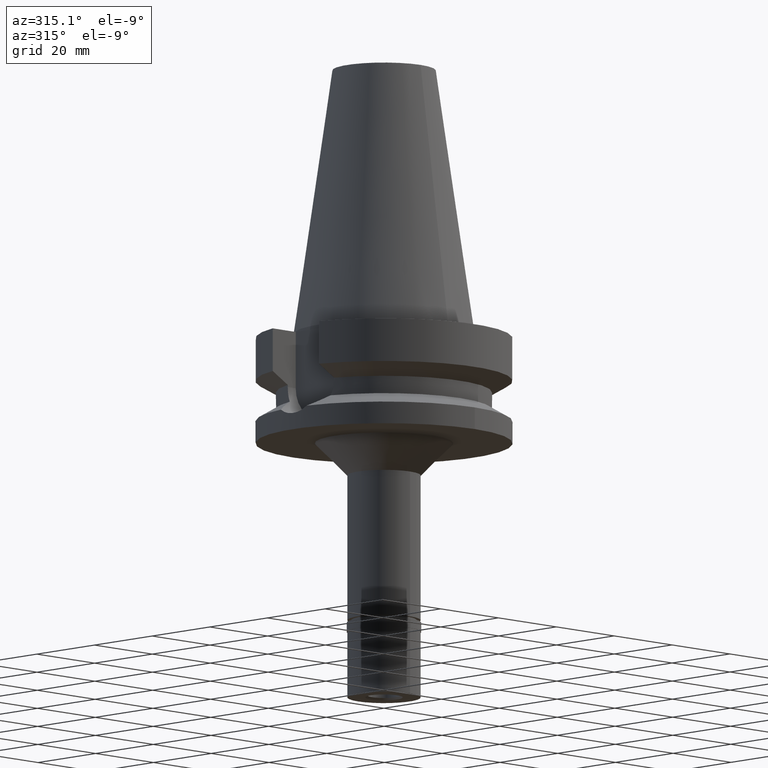
[diagram: clean part render]
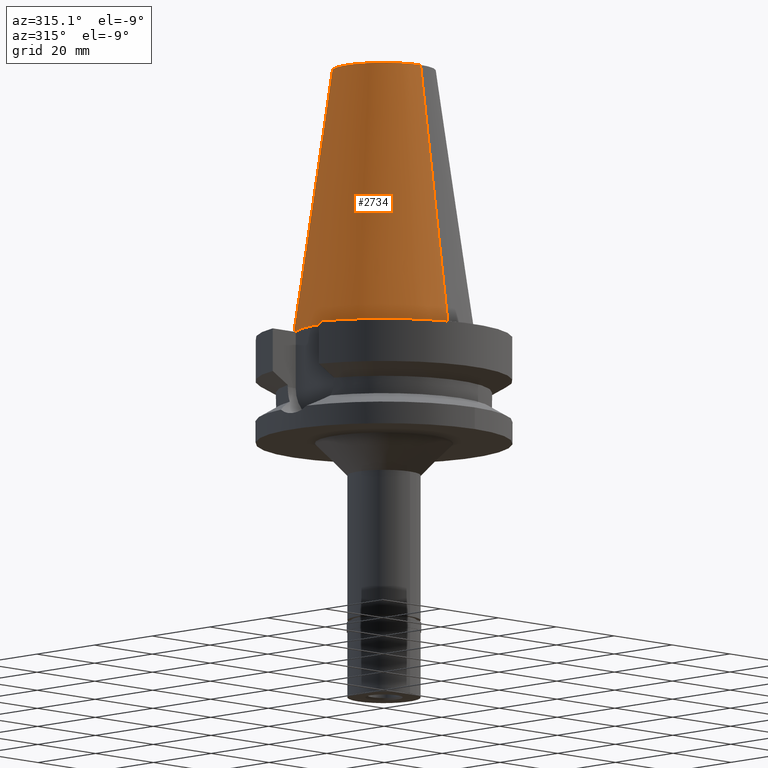
[diagram: same view with one face highlighted and labeled with its STEP entity id]
A machine part, auxiliary view. The second image highlights one B-rep face of the part: STEP entity #2734.
In plain terms, the highlighted conical surface has half-angle 8.297 deg.
Its self-contained STEP definition (entity closure, byte-faithful):
#12 = DIRECTION ( 'NONE',  ( 0.0000000000000000000, 0.0000000000000000000, -1.000000000000000000 ) ) ;
#41 = DIRECTION ( 'NONE',  ( 0.0000000000000000000, -1.000000000000000000, 0.0000000000000000000 ) ) ;
#51 = EDGE_CURVE ( 'NONE', #925, #2870, #2675, .T. ) ;
#63 = CARTESIAN_POINT ( 'NONE',  ( 0.0000000000000000000, 1.625106302469000024E-14, 2.842170943039999687E-14 ) ) ;
#117 = ORIENTED_EDGE ( 'NONE', *, *, #51, .T. ) ;
#267 = LINE ( 'NONE', #2038, #532 ) ;
#314 = EDGE_CURVE ( 'NONE', #2449, #2870, #458, .T. ) ;
#326 = VERTEX_POINT ( 'NONE', #1867 ) ;
#332 = CONICAL_SURFACE ( 'NONE', #907, 17.45633449714999941, 0.1448099680379422438 ) ;
#458 = CIRCLE ( 'NONE', #1576, 22.22500000000000142 ) ;
#465 = ORIENTED_EDGE ( 'NONE', *, *, #884, .T. ) ;
#532 = VECTOR ( 'NONE', #1824, 1000.000000000000114 ) ;
#675 = EDGE_LOOP ( 'NONE', ( #1552, #2220, #465, #117 ) ) ;
#856 = DIRECTION ( 'NONE',  ( 0.0000000000000000000, -1.000000000000000000, 0.0000000000000000000 ) ) ;
#884 = EDGE_CURVE ( 'NONE', #326, #925, #2510, .T. ) ;
#890 = CARTESIAN_POINT ( 'NONE',  ( 0.0000000000000000000, 1.625106302469000024E-14, 32.70000000000000284 ) ) ;
#907 = AXIS2_PLACEMENT_3D ( 'NONE', #890, #12, #856 ) ;
#925 = VERTEX_POINT ( 'NONE', #2626 ) ;
#1100 = DIRECTION ( 'NONE',  ( 0.0000000000000000000, -1.000000000000000000, 0.0000000000000000000 ) ) ;
#1295 = CARTESIAN_POINT ( 'NONE',  ( 0.0000000000000000000, 1.625106302469000024E-14, 65.40000000000000568 ) ) ;
#1543 = EDGE_CURVE ( 'NONE', #326, #2449, #267, .T. ) ;
#1551 = CARTESIAN_POINT ( 'NONE',  ( 0.0000000000000000000, 12.68766899429999917, 65.40000000000000568 ) ) ;
#1552 = ORIENTED_EDGE ( 'NONE', *, *, #314, .F. ) ;
#1576 = AXIS2_PLACEMENT_3D ( 'NONE', #63, #2742, #41 ) ;
#1577 = FACE_OUTER_BOUND ( 'NONE', #675, .T. ) ;
#1624 = CARTESIAN_POINT ( 'NONE',  ( 0.0000000000000000000, -22.22500000000000142, 7.105427357600999334E-14 ) ) ;
#1824 = DIRECTION ( 'NONE',  ( 0.0000000000000000000, -0.1443043893539925626, -0.9895333461855498891 ) ) ;
#1867 = CARTESIAN_POINT ( 'NONE',  ( 0.0000000000000000000, -12.68766899429999917, 65.40000000000000568 ) ) ;
#2038 = CARTESIAN_POINT ( 'NONE',  ( 0.0000000000000000000, -12.68766899429999917, 65.40000000000000568 ) ) ;
#2069 = CARTESIAN_POINT ( 'NONE',  ( 0.0000000000000000000, 22.22500000000000142, 7.105427357600999334E-14 ) ) ;
#2177 = VECTOR ( 'NONE', #2453, 1000.000000000000114 ) ;
#2220 = ORIENTED_EDGE ( 'NONE', *, *, #1543, .F. ) ;
#2449 = VERTEX_POINT ( 'NONE', #1624 ) ;
#2453 = DIRECTION ( 'NONE',  ( 0.0000000000000000000, 0.1443043893539925626, -0.9895333461855498891 ) ) ;
#2510 = CIRCLE ( 'NONE', #2556, 12.68766899429999917 ) ;
#2556 = AXIS2_PLACEMENT_3D ( 'NONE', #1295, #2831, #1100 ) ;
#2626 = CARTESIAN_POINT ( 'NONE',  ( 0.0000000000000000000, 12.68766899429999917, 65.40000000000000568 ) ) ;
#2675 = LINE ( 'NONE', #1551, #2177 ) ;
#2734 = ADVANCED_FACE ( 'NONE', ( #1577 ), #332, .T. ) ;
#2742 = DIRECTION ( 'NONE',  ( 0.0000000000000000000, 0.0000000000000000000, -1.000000000000000000 ) ) ;
#2831 = DIRECTION ( 'NONE',  ( 0.0000000000000000000, 0.0000000000000000000, -1.000000000000000000 ) ) ;
#2870 = VERTEX_POINT ( 'NONE', #2069 ) ;